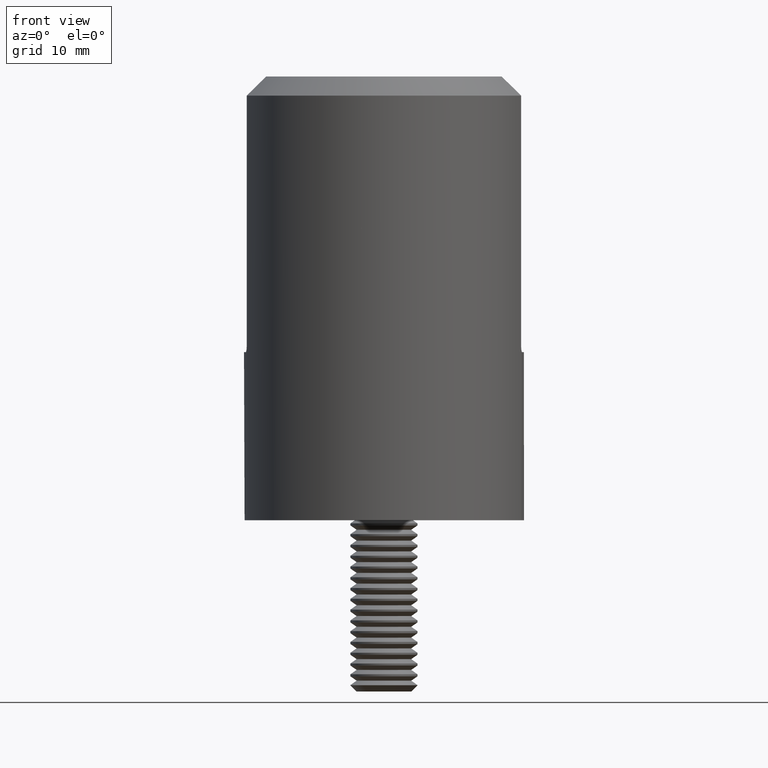
[diagram: clean part render]
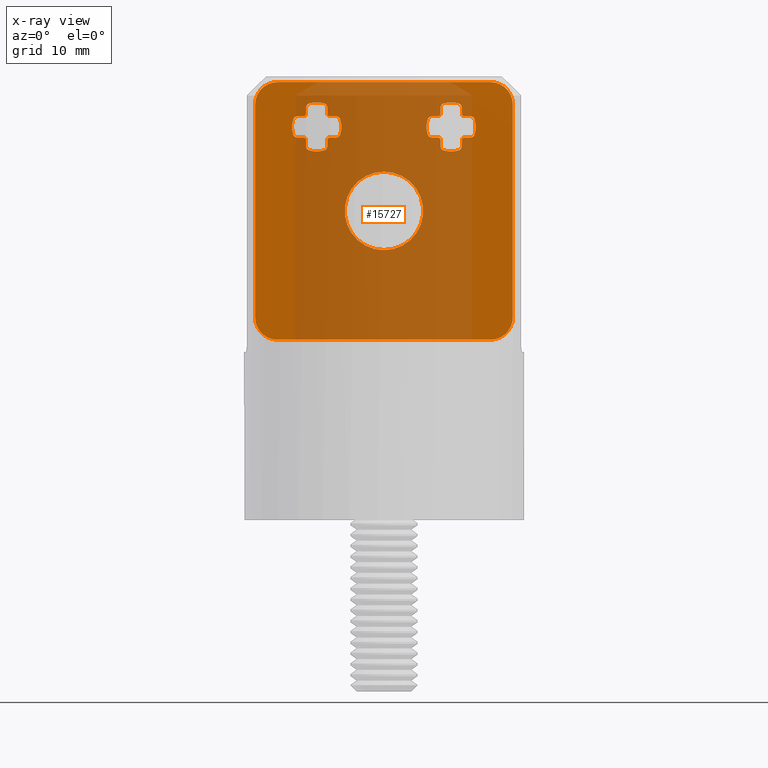
[diagram: x-ray — body ghosted, one internal face saturated and labeled with its STEP entity id]
A machine part, front view, then the same camera in x-ray: the body is ghosted and one INTERNAL B-rep face — a face not visible from any outside direction — is saturated and labeled: STEP entity #15727.
In plain terms, the highlighted planar face has unit normal (0, 1, 0).
Its self-contained STEP definition (entity closure, byte-faithful):
#44 = ORIENTED_EDGE ( 'NONE', *, *, #3584, .T. ) ;
#50 = DIRECTION ( 'NONE',  ( 0.000000000000000000, 0.000000000000000000, -1.000000000000000000 ) ) ;
#71 = CARTESIAN_POINT ( 'NONE',  ( -6.550000000000002487, 1.000000000000000000, 9.213913650100257868 ) ) ;
#146 = EDGE_CURVE ( 'NONE', #19645, #20471, #16641, .T. ) ;
#153 = ORIENTED_EDGE ( 'NONE', *, *, #2492, .T. ) ;
#170 = VERTEX_POINT ( 'NONE', #1592 ) ;
#290 = ORIENTED_EDGE ( 'NONE', *, *, #9149, .F. ) ;
#299 = DIRECTION ( 'NONE',  ( 0.000000000000000000, 0.000000000000000000, -1.000000000000000000 ) ) ;
#421 = ORIENTED_EDGE ( 'NONE', *, *, #8252, .T. ) ;
#505 = ORIENTED_EDGE ( 'NONE', *, *, #21243, .T. ) ;
#563 = CARTESIAN_POINT ( 'NONE',  ( 4.286086349899742132, 1.000000000000000000, 6.549999999999997158 ) ) ;
#592 = CARTESIAN_POINT ( 'NONE',  ( 5.050000000000006928, 1.000000000000000000, 3.162929625227602515E-15 ) ) ;
#634 = ORIENTED_EDGE ( 'NONE', *, *, #14042, .F. ) ;
#670 = CARTESIAN_POINT ( 'NONE',  ( 4.286086349899742132, 1.000000000000000000, 8.449999999999997513 ) ) ;
#910 = EDGE_CURVE ( 'NONE', #9044, #5664, #13900, .T. ) ;
#1152 = VECTOR ( 'NONE', #20059, 1000.000000000000000 ) ;
#1214 = CARTESIAN_POINT ( 'NONE',  ( -6.000000000000002665, 1.000000000000000000, 7.499999999999996447 ) ) ;
#1241 = CARTESIAN_POINT ( 'NONE',  ( 11.50000000000000000, 1.000000000000000000, 11.49999999999999822 ) ) ;
#1272 = DIRECTION ( 'NONE',  ( 0.000000000000000000, -1.000000000000000000, -0.000000000000000000 ) ) ;
#1314 = DIRECTION ( 'NONE',  ( 0.000000000000000000, 0.000000000000000000, -1.000000000000000000 ) ) ;
#1315 = CARTESIAN_POINT ( 'NONE',  ( 5.050000000000002487, 1.000000000000000000, 9.213913650100257868 ) ) ;
#1401 = VERTEX_POINT ( 'NONE', #12452 ) ;
#1406 = AXIS2_PLACEMENT_3D ( 'NONE', #21088, #2342, #12486 ) ;
#1437 = AXIS2_PLACEMENT_3D ( 'NONE', #3101, #4990, #16957 ) ;
#1491 = CARTESIAN_POINT ( 'NONE',  ( -11.50000000000000000, 1.000000000000000000, 9.499999999999996447 ) ) ;
#1555 = CARTESIAN_POINT ( 'NONE',  ( 6.000000000000002665, 1.000000000000000000, 7.499999999999996447 ) ) ;
#1575 = CIRCLE ( 'NONE', #14574, 1.450000000000001732 ) ;
#1592 = CARTESIAN_POINT ( 'NONE',  ( 5.327777777777780166, 1.000000000000000000, 5.405216649877454316 ) ) ;
#1791 = ORIENTED_EDGE ( 'NONE', *, *, #14181, .F. ) ;
#1824 = ORIENTED_EDGE ( 'NONE', *, *, #14923, .F. ) ;
#1828 = EDGE_CURVE ( 'NONE', #12623, #3559, #21762, .T. ) ;
#1979 = EDGE_CURVE ( 'NONE', #7369, #12628, #4358, .T. ) ;
#2043 = DIRECTION ( 'NONE',  ( -1.000000000000000000, -0.000000000000000000, -0.000000000000000000 ) ) ;
#2130 = CARTESIAN_POINT ( 'NONE',  ( -11.50000000000000355, 1.000000000000000000, -9.499999999999987566 ) ) ;
#2137 = EDGE_CURVE ( 'NONE', #20471, #18187, #15336, .T. ) ;
#2238 = ORIENTED_EDGE ( 'NONE', *, *, #5982, .T. ) ;
#2296 = EDGE_CURVE ( 'NONE', #7059, #9124, #19320, .T. ) ;
#2316 = VERTEX_POINT ( 'NONE', #16886 ) ;
#2342 = DIRECTION ( 'NONE',  ( 0.000000000000000000, -1.000000000000000000, -0.000000000000000000 ) ) ;
#2352 = CIRCLE ( 'NONE', #1406, 1.450000000000001732 ) ;
#2356 = DIRECTION ( 'NONE',  ( -0.000000000000000000, 1.000000000000000000, 0.000000000000000000 ) ) ;
#2409 = CARTESIAN_POINT ( 'NONE',  ( 9.499999999999994671, 1.000000000000000000, -11.50000000000000000 ) ) ;
#2444 = DIRECTION ( 'NONE',  ( -1.000000000000000000, 0.000000000000000000, 0.000000000000000000 ) ) ;
#2460 = CIRCLE ( 'NONE', #9320, 2.200000000000000622 ) ;
#2492 = EDGE_CURVE ( 'NONE', #18591, #18471, #4594, .T. ) ;
#2519 = DIRECTION ( 'NONE',  ( 0.000000000000000000, -1.000000000000000000, -0.000000000000000000 ) ) ;
#2574 = DIRECTION ( 'NONE',  ( -0.000000000000000000, 1.000000000000000000, 0.000000000000000000 ) ) ;
#2578 = ORIENTED_EDGE ( 'NONE', *, *, #13150, .F. ) ;
#2656 = VECTOR ( 'NONE', #3672, 1000.000000000000000 ) ;
#2678 = EDGE_CURVE ( 'NONE', #13022, #21273, #5667, .T. ) ;
#2696 = CARTESIAN_POINT ( 'NONE',  ( -5.050000000000002487, 1.000000000000000000, 0.000000000000000000 ) ) ;
#2719 = CARTESIAN_POINT ( 'NONE',  ( -4.286086349899737691, 1.000000000000000000, 6.549999999999997158 ) ) ;
#2736 = LINE ( 'NONE', #11744, #5438 ) ;
#2758 = VERTEX_POINT ( 'NONE', #6447 ) ;
#2798 = AXIS2_PLACEMENT_3D ( 'NONE', #5819, #19737, #7444 ) ;
#2811 = CIRCLE ( 'NONE', #2950, 0.4000000000000001887 ) ;
#2828 = DIRECTION ( 'NONE',  ( -0.000000000000000000, 1.000000000000000000, 0.000000000000000000 ) ) ;
#2860 = DIRECTION ( 'NONE',  ( -1.000000000000000000, -0.000000000000000000, -0.000000000000000000 ) ) ;
#2889 = AXIS2_PLACEMENT_3D ( 'NONE', #11003, #19688, #11217 ) ;
#2906 = CARTESIAN_POINT ( 'NONE',  ( -5.450000000000001954, 1.000000000000000000, 9.213913650100261421 ) ) ;
#2911 = EDGE_CURVE ( 'NONE', #10373, #20792, #11012, .T. ) ;
#2935 = CARTESIAN_POINT ( 'NONE',  ( 8.094783350122543908, 1.000000000000000000, 6.827777777777773061 ) ) ;
#2950 = AXIS2_PLACEMENT_3D ( 'NONE', #20547, #6982, #5140 ) ;
#3060 = AXIS2_PLACEMENT_3D ( 'NONE', #21128, #11011, #17597 ) ;
#3101 = CARTESIAN_POINT ( 'NONE',  ( 6.000000000000002665, 1.000000000000000000, 7.499999999999996447 ) ) ;
#3114 = VECTOR ( 'NONE', #11691, 1000.000000000000000 ) ;
#3177 = ORIENTED_EDGE ( 'NONE', *, *, #9538, .T. ) ;
#3199 = ORIENTED_EDGE ( 'NONE', *, *, #9193, .T. ) ;
#3231 = AXIS2_PLACEMENT_3D ( 'NONE', #9129, #4010, #21244 ) ;
#3342 = DIRECTION ( 'NONE',  ( 6.263226980648709475E-16, -0.000000000000000000, -1.000000000000000000 ) ) ;
#3402 = ORIENTED_EDGE ( 'NONE', *, *, #22007, .T. ) ;
#3454 = VECTOR ( 'NONE', #3342, 1000.000000000000000 ) ;
#3471 = DIRECTION ( 'NONE',  ( -0.000000000000000000, 1.000000000000000000, 0.000000000000000000 ) ) ;
#3515 = VECTOR ( 'NONE', #8057, 1000.000000000000000 ) ;
#3559 = VERTEX_POINT ( 'NONE', #18555 ) ;
#3572 = CARTESIAN_POINT ( 'NONE',  ( -6.950000000000002842, 1.000000000000000000, 8.499999999999994671 ) ) ;
#3584 = EDGE_CURVE ( 'NONE', #19025, #7617, #13683, .T. ) ;
#3601 = ORIENTED_EDGE ( 'NONE', *, *, #10286, .T. ) ;
#3672 = DIRECTION ( 'NONE',  ( 1.000000000000000000, -0.000000000000000000, -0.000000000000000000 ) ) ;
#3732 = AXIS2_PLACEMENT_3D ( 'NONE', #6668, #20241, #8411 ) ;
#3767 = AXIS2_PLACEMENT_3D ( 'NONE', #11432, #9652, #1314 ) ;
#3885 = ORIENTED_EDGE ( 'NONE', *, *, #13881, .F. ) ;
#3902 = ORIENTED_EDGE ( 'NONE', *, *, #2296, .F. ) ;
#3913 = FACE_OUTER_BOUND ( 'NONE', #21802, .T. ) ;
#3956 = AXIS2_PLACEMENT_3D ( 'NONE', #15456, #8723, #50 ) ;
#3972 = DIRECTION ( 'NONE',  ( -0.000000000000000000, 1.000000000000000000, 0.000000000000000000 ) ) ;
#4010 = DIRECTION ( 'NONE',  ( -0.000000000000000000, 1.000000000000000000, 0.000000000000000000 ) ) ;
#4082 = EDGE_CURVE ( 'NONE', #7369, #5664, #15042, .T. ) ;
#4100 = DIRECTION ( 'NONE',  ( 2.168404344971007685E-15, 0.000000000000000000, -1.000000000000000000 ) ) ;
#4124 = VERTEX_POINT ( 'NONE', #20135 ) ;
#4150 = EDGE_CURVE ( 'NONE', #9044, #7908, #9419, .T. ) ;
#4200 = CARTESIAN_POINT ( 'NONE',  ( 5.050000000000002487, 1.000000000000000000, 8.499999999999994671 ) ) ;
#4340 = CARTESIAN_POINT ( 'NONE',  ( -5.000000000000003553, 1.000000000000000000, 8.449999999999997513 ) ) ;
#4358 = LINE ( 'NONE', #7016, #21225 ) ;
#4405 = CARTESIAN_POINT ( 'NONE',  ( 9.499999999999996447, 1.000000000000000000, -9.500000000000000000 ) ) ;
#4428 = ORIENTED_EDGE ( 'NONE', *, *, #5913, .T. ) ;
#4462 = AXIS2_PLACEMENT_3D ( 'NONE', #18307, #4685, #6182 ) ;
#4482 = DIRECTION ( 'NONE',  ( 1.000000000000000000, 0.000000000000000000, 7.542275982507857147E-17 ) ) ;
#4507 = CARTESIAN_POINT ( 'NONE',  ( 7.713913650100264086, 1.000000000000000000, 8.049999999999997158 ) ) ;
#4526 = DIRECTION ( 'NONE',  ( 0.000000000000000000, 0.000000000000000000, -1.000000000000000000 ) ) ;
#4555 = ORIENTED_EDGE ( 'NONE', *, *, #15087, .T. ) ;
#4559 = VERTEX_POINT ( 'NONE', #17942 ) ;
#4594 = LINE ( 'NONE', #20791, #12385 ) ;
#4635 = VERTEX_POINT ( 'NONE', #9788 ) ;
#4679 = AXIS2_PLACEMENT_3D ( 'NONE', #15996, #14358, #12713 ) ;
#4685 = DIRECTION ( 'NONE',  ( -0.000000000000000000, 1.000000000000000000, 0.000000000000000000 ) ) ;
#4773 = CIRCLE ( 'NONE', #8316, 0.4000000000000001887 ) ;
#4869 = ORIENTED_EDGE ( 'NONE', *, *, #2137, .T. ) ;
#4948 = AXIS2_PLACEMENT_3D ( 'NONE', #6448, #19627, #9537 ) ;
#4990 = DIRECTION ( 'NONE',  ( 0.000000000000000000, -1.000000000000000000, -0.000000000000000000 ) ) ;
#5095 = DIRECTION ( 'NONE',  ( -6.263226980648714405E-16, 0.000000000000000000, -1.000000000000000000 ) ) ;
#5100 = LINE ( 'NONE', #21645, #13663 ) ;
#5140 = DIRECTION ( 'NONE',  ( -2.168404344971007685E-15, 0.000000000000000000, -1.000000000000000000 ) ) ;
#5145 = CARTESIAN_POINT ( 'NONE',  ( -5.450000000000002842, 1.000000000000000000, 5.786086349899735026 ) ) ;
#5182 = ORIENTED_EDGE ( 'NONE', *, *, #11761, .T. ) ;
#5191 = DIRECTION ( 'NONE',  ( 0.000000000000000000, -1.000000000000000000, -0.000000000000000000 ) ) ;
#5208 = VERTEX_POINT ( 'NONE', #11467 ) ;
#5282 = EDGE_CURVE ( 'NONE', #4124, #6681, #1575, .T. ) ;
#5299 = VERTEX_POINT ( 'NONE', #1491 ) ;
#5321 = ORIENTED_EDGE ( 'NONE', *, *, #15883, .T. ) ;
#5359 = DIRECTION ( 'NONE',  ( 0.000000000000000000, -1.000000000000000000, -0.000000000000000000 ) ) ;
#5389 = EDGE_CURVE ( 'NONE', #6681, #8841, #20068, .T. ) ;
#5438 = VECTOR ( 'NONE', #6733, 1000.000000000000000 ) ;
#5448 = EDGE_CURVE ( 'NONE', #7103, #9124, #15003, .T. ) ;
#5511 = ORIENTED_EDGE ( 'NONE', *, *, #1828, .T. ) ;
#5535 = ORIENTED_EDGE ( 'NONE', *, *, #5389, .T. ) ;
#5565 = CARTESIAN_POINT ( 'NONE',  ( 7.095445115011708381, 1.000000000000000000, 6.550000000001578115 ) ) ;
#5568 = CARTESIAN_POINT ( 'NONE',  ( 7.095445115013530923, 1.000000000000000000, 8.449999999999997513 ) ) ;
#5621 = EDGE_CURVE ( 'NONE', #12444, #5208, #5100, .T. ) ;
#5664 = VERTEX_POINT ( 'NONE', #7012 ) ;
#5667 = CIRCLE ( 'NONE', #20852, 0.3999999999999993006 ) ;
#5711 = LINE ( 'NONE', #8305, #1152 ) ;
#5753 = DIRECTION ( 'NONE',  ( 0.000000000000000000, 0.000000000000000000, -1.000000000000000000 ) ) ;
#5762 = VERTEX_POINT ( 'NONE', #15673 ) ;
#5789 = FACE_BOUND ( 'NONE', #18725, .T. ) ;
#5805 = CARTESIAN_POINT ( 'NONE',  ( 4.286086349899742132, 1.000000000000000000, 8.049999999999997158 ) ) ;
#5819 = CARTESIAN_POINT ( 'NONE',  ( -6.000000000000002665, 1.000000000000000000, 7.499999999999996447 ) ) ;
#5913 = EDGE_CURVE ( 'NONE', #9985, #2758, #8283, .T. ) ;
#5982 = EDGE_CURVE ( 'NONE', #19399, #16402, #14193, .T. ) ;
#6010 = ORIENTED_EDGE ( 'NONE', *, *, #4082, .F. ) ;
#6035 = ORIENTED_EDGE ( 'NONE', *, *, #146, .T. ) ;
#6087 = DIRECTION ( 'NONE',  ( 0.000000000000000000, 0.000000000000000000, -1.000000000000000000 ) ) ;
#6095 = CARTESIAN_POINT ( 'NONE',  ( 6.672222222222226939, 1.000000000000000000, 5.405216649877455204 ) ) ;
#6182 = DIRECTION ( 'NONE',  ( 0.000000000000000000, 0.000000000000000000, -1.000000000000000000 ) ) ;
#6193 = AXIS2_PLACEMENT_3D ( 'NONE', #21175, #7313, #5753 ) ;
#6196 = VERTEX_POINT ( 'NONE', #12297 ) ;
#6242 = ORIENTED_EDGE ( 'NONE', *, *, #21346, .T. ) ;
#6304 = CARTESIAN_POINT ( 'NONE',  ( -5.050000000000002487, 1.000000000000000000, 9.213913650100261421 ) ) ;
#6336 = LINE ( 'NONE', #16651, #22188 ) ;
#6357 = CARTESIAN_POINT ( 'NONE',  ( 7.713913650100264086, 1.000000000000000000, 6.949999999999995737 ) ) ;
#6447 = CARTESIAN_POINT ( 'NONE',  ( 5.050000000001583444, 1.000000000000000000, 8.595445115011701276 ) ) ;
#6448 = CARTESIAN_POINT ( 'NONE',  ( 6.000000000000002665, 1.000000000000000000, 7.499999999999996447 ) ) ;
#6501 = VERTEX_POINT ( 'NONE', #15486 ) ;
#6629 = CARTESIAN_POINT ( 'NONE',  ( 11.50000000000000000, 1.000000000000000000, 9.499999999999998224 ) ) ;
#6668 = CARTESIAN_POINT ( 'NONE',  ( 0.000000000000000000, 1.000000000000000000, 0.000000000000000000 ) ) ;
#6669 = AXIS2_PLACEMENT_3D ( 'NONE', #17753, #9245, #9096 ) ;
#6681 = VERTEX_POINT ( 'NONE', #21382 ) ;
#6733 = DIRECTION ( 'NONE',  ( 1.000000000000000000, -0.000000000000000000, 6.263226980648714405E-16 ) ) ;
#6761 = LINE ( 'NONE', #19544, #21245 ) ;
#6799 = EDGE_CURVE ( 'NONE', #20240, #20792, #16552, .T. ) ;
#6843 = DIRECTION ( 'NONE',  ( 0.000000000000000000, 0.000000000000000000, -1.000000000000000000 ) ) ;
#6937 = AXIS2_PLACEMENT_3D ( 'NONE', #12375, #17447, #7468 ) ;
#6966 = CARTESIAN_POINT ( 'NONE',  ( -9.500000000000000000, 1.000000000000000000, 11.49999999999999645 ) ) ;
#6982 = DIRECTION ( 'NONE',  ( -0.000000000000000000, 1.000000000000000000, 0.000000000000000000 ) ) ;
#6992 = DIRECTION ( 'NONE',  ( 0.000000000000000000, 0.000000000000000000, -1.000000000000000000 ) ) ;
#7012 = CARTESIAN_POINT ( 'NONE',  ( 8.094783350122545684, 1.000000000000000000, 8.172222222222217169 ) ) ;
#7016 = CARTESIAN_POINT ( 'NONE',  ( 7.000000000000002665, 1.000000000000000000, 8.449999999999997513 ) ) ;
#7059 = VERTEX_POINT ( 'NONE', #19630 ) ;
#7103 = VERTEX_POINT ( 'NONE', #16120 ) ;
#7128 = CIRCLE ( 'NONE', #16814, 2.200000000000000622 ) ;
#7169 = DIRECTION ( 'NONE',  ( -1.000000000000000000, 0.000000000000000000, 0.000000000000000000 ) ) ;
#7313 = DIRECTION ( 'NONE',  ( -0.000000000000000000, 1.000000000000000000, 0.000000000000000000 ) ) ;
#7369 = VERTEX_POINT ( 'NONE', #8829 ) ;
#7386 = FACE_BOUND ( 'NONE', #16112, .T. ) ;
#7399 = CARTESIAN_POINT ( 'NONE',  ( -8.094783350122538579, 1.000000000000000000, 6.827777777777773061 ) ) ;
#7444 = DIRECTION ( 'NONE',  ( 0.000000000000000000, 0.000000000000000000, -1.000000000000000000 ) ) ;
#7468 = DIRECTION ( 'NONE',  ( 0.000000000000000000, 0.000000000000000000, -1.000000000000000000 ) ) ;
#7485 = ORIENTED_EDGE ( 'NONE', *, *, #12264, .F. ) ;
#7512 = DIRECTION ( 'NONE',  ( 0.000000000000000000, 0.000000000000000000, -1.000000000000000000 ) ) ;
#7614 = LINE ( 'NONE', #20331, #16450 ) ;
#7617 = VERTEX_POINT ( 'NONE', #12711 ) ;
#7649 = CARTESIAN_POINT ( 'NONE',  ( -9.500000000000005329, 1.000000000000000000, -11.49999999999999112 ) ) ;
#7664 = DIRECTION ( 'NONE',  ( 0.000000000000000000, -1.000000000000000000, -0.000000000000000000 ) ) ;
#7666 = LINE ( 'NONE', #18763, #10358 ) ;
#7780 = CARTESIAN_POINT ( 'NONE',  ( 6.000000000000002665, 1.000000000000000000, 7.499999999999996447 ) ) ;
#7819 = ORIENTED_EDGE ( 'NONE', *, *, #22178, .F. ) ;
#7824 = VERTEX_POINT ( 'NONE', #15389 ) ;
#7873 = ORIENTED_EDGE ( 'NONE', *, *, #20155, .T. ) ;
#7908 = VERTEX_POINT ( 'NONE', #16947 ) ;
#8016 = ORIENTED_EDGE ( 'NONE', *, *, #8042, .T. ) ;
#8042 = EDGE_CURVE ( 'NONE', #4635, #10252, #20535, .T. ) ;
#8057 = DIRECTION ( 'NONE',  ( -1.508455196501571429E-16, 0.000000000000000000, -1.000000000000000000 ) ) ;
#8100 = DIRECTION ( 'NONE',  ( -0.000000000000000000, 1.000000000000000000, 0.000000000000000000 ) ) ;
#8243 = CARTESIAN_POINT ( 'NONE',  ( -5.999999999999997335, 1.000000000000000000, 7.499999999999998224 ) ) ;
#8252 = EDGE_CURVE ( 'NONE', #13509, #16951, #8484, .T. ) ;
#8283 = LINE ( 'NONE', #4200, #8541 ) ;
#8305 = CARTESIAN_POINT ( 'NONE',  ( 5.000000000000003553, 1.000000000000000000, 6.549999999999997158 ) ) ;
#8316 = AXIS2_PLACEMENT_3D ( 'NONE', #10381, #17260, #6992 ) ;
#8386 = EDGE_CURVE ( 'NONE', #10373, #11030, #14381, .T. ) ;
#8387 = ORIENTED_EDGE ( 'NONE', *, *, #12014, .T. ) ;
#8388 = ORIENTED_EDGE ( 'NONE', *, *, #14104, .F. ) ;
#8411 = DIRECTION ( 'NONE',  ( 0.000000000000000000, 0.000000000000000000, 1.000000000000000000 ) ) ;
#8466 = DIRECTION ( 'NONE',  ( 0.000000000000000000, 0.000000000000000000, 1.000000000000000000 ) ) ;
#8484 = LINE ( 'NONE', #16796, #3114 ) ;
#8511 = CIRCLE ( 'NONE', #14249, 0.4000000000000001887 ) ;
#8521 = VECTOR ( 'NONE', #2860, 1000.000000000000000 ) ;
#8534 = VERTEX_POINT ( 'NONE', #9624 ) ;
#8541 = VECTOR ( 'NONE', #15078, 1000.000000000000000 ) ;
#8608 = EDGE_CURVE ( 'NONE', #7059, #4124, #7666, .T. ) ;
#8723 = DIRECTION ( 'NONE',  ( 0.000000000000000000, -1.000000000000000000, -0.000000000000000000 ) ) ;
#8802 = ORIENTED_EDGE ( 'NONE', *, *, #13662, .F. ) ;
#8829 = CARTESIAN_POINT ( 'NONE',  ( 7.713913650100264086, 1.000000000000000000, 8.449999999999997513 ) ) ;
#8841 = VERTEX_POINT ( 'NONE', #2719 ) ;
#8953 = CARTESIAN_POINT ( 'NONE',  ( -6.000000000000002665, 1.000000000000000000, 7.499999999999996447 ) ) ;
#9044 = VERTEX_POINT ( 'NONE', #2935 ) ;
#9072 = AXIS2_PLACEMENT_3D ( 'NONE', #12675, #3972, #19470 ) ;
#9096 = DIRECTION ( 'NONE',  ( 0.000000000000000000, 0.000000000000000000, -1.000000000000000000 ) ) ;
#9124 = VERTEX_POINT ( 'NONE', #13828 ) ;
#9129 = CARTESIAN_POINT ( 'NONE',  ( 5.450000000000001954, 1.000000000000000000, 9.213913650100257868 ) ) ;
#9149 = EDGE_CURVE ( 'NONE', #2316, #7824, #2811, .T. ) ;
#9193 = EDGE_CURVE ( 'NONE', #18187, #14406, #15433, .T. ) ;
#9245 = DIRECTION ( 'NONE',  ( 0.000000000000000000, -1.000000000000000000, -0.000000000000000000 ) ) ;
#9297 = AXIS2_PLACEMENT_3D ( 'NONE', #8953, #5359, #12086 ) ;
#9320 = AXIS2_PLACEMENT_3D ( 'NONE', #1555, #5191, #10044 ) ;
#9343 = CARTESIAN_POINT ( 'NONE',  ( -7.713913650100259645, 1.000000000000000000, 8.449999999999997513 ) ) ;
#9403 = CARTESIAN_POINT ( 'NONE',  ( 6.000000000000002665, 1.000000000000000000, 7.499999999999996447 ) ) ;
#9419 = CIRCLE ( 'NONE', #13055, 0.4000000000000001887 ) ;
#9420 = CARTESIAN_POINT ( 'NONE',  ( -3.905216649877456536, 1.000000000000000000, 6.827777777777773061 ) ) ;
#9478 = CARTESIAN_POINT ( 'NONE',  ( -7.713913650100257868, 1.000000000000000000, 6.949999999999995737 ) ) ;
#9479 = EDGE_CURVE ( 'NONE', #19890, #7824, #19957, .T. ) ;
#9537 = DIRECTION ( 'NONE',  ( 0.000000000000000000, 0.000000000000000000, -1.000000000000000000 ) ) ;
#9538 = EDGE_CURVE ( 'NONE', #1401, #19399, #10605, .T. ) ;
#9583 = ORIENTED_EDGE ( 'NONE', *, *, #5448, .T. ) ;
#9585 = CARTESIAN_POINT ( 'NONE',  ( 6.000000000000002665, 1.000000000000000000, 7.499999999999996447 ) ) ;
#9602 = VERTEX_POINT ( 'NONE', #15585 ) ;
#9624 = CARTESIAN_POINT ( 'NONE',  ( 0.000000000000000000, 1.000000000000000000, 3.499999999999999556 ) ) ;
#9641 = CARTESIAN_POINT ( 'NONE',  ( 5.327777777777778390, 1.000000000000000000, 9.594783350122536802 ) ) ;
#9652 = DIRECTION ( 'NONE',  ( -0.000000000000000000, 1.000000000000000000, 0.000000000000000000 ) ) ;
#9788 = CARTESIAN_POINT ( 'NONE',  ( 6.672222222222225163, 1.000000000000000000, 9.594783350122536802 ) ) ;
#9885 = CIRCLE ( 'NONE', #9889, 2.000000000000000000 ) ;
#9889 = AXIS2_PLACEMENT_3D ( 'NONE', #11134, #2356, #14596 ) ;
#9900 = DIRECTION ( 'NONE',  ( 0.000000000000000000, 0.000000000000000000, -1.000000000000000000 ) ) ;
#9928 = DIRECTION ( 'NONE',  ( 1.508455196501572415E-16, -0.000000000000000000, 1.000000000000000000 ) ) ;
#9971 = DIRECTION ( 'NONE',  ( 0.000000000000000000, -1.000000000000000000, -0.000000000000000000 ) ) ;
#9985 = VERTEX_POINT ( 'NONE', #1315 ) ;
#10044 = DIRECTION ( 'NONE',  ( 0.000000000000000000, 0.000000000000000000, -1.000000000000000000 ) ) ;
#10115 = DIRECTION ( 'NONE',  ( 0.000000000000000000, 0.000000000000000000, -1.000000000000000000 ) ) ;
#10140 = DIRECTION ( 'NONE',  ( 1.000000000000000000, 0.000000000000000000, -6.263226980648714405E-16 ) ) ;
#10252 = VERTEX_POINT ( 'NONE', #9641 ) ;
#10286 = EDGE_CURVE ( 'NONE', #20665, #5299, #7614, .T. ) ;
#10348 = LINE ( 'NONE', #4340, #19993 ) ;
#10358 = VECTOR ( 'NONE', #10387, 1000.000000000000000 ) ;
#10366 = AXIS2_PLACEMENT_3D ( 'NONE', #9478, #19873, #6087 ) ;
#10373 = VERTEX_POINT ( 'NONE', #17255 ) ;
#10381 = CARTESIAN_POINT ( 'NONE',  ( 4.286086349899742132, 1.000000000000000000, 6.949999999999995737 ) ) ;
#10387 = DIRECTION ( 'NONE',  ( 6.263226980648709475E-16, 0.000000000000000000, 1.000000000000000000 ) ) ;
#10467 = DIRECTION ( 'NONE',  ( -0.000000000000000000, 1.000000000000000000, 0.000000000000000000 ) ) ;
#10523 = AXIS2_PLACEMENT_3D ( 'NONE', #7780, #19834, #17806 ) ;
#10528 = CIRCLE ( 'NONE', #21517, 0.4000000000000001887 ) ;
#10581 = CARTESIAN_POINT ( 'NONE',  ( -7.713913650100259645, 1.000000000000000000, 8.049999999999997158 ) ) ;
#10605 = LINE ( 'NONE', #18716, #14624 ) ;
#10646 = PLANE ( 'NONE',  #2889 ) ;
#10655 = CARTESIAN_POINT ( 'NONE',  ( 0.000000000000000000, 1.000000000000000000, 6.549999999999997158 ) ) ;
#10789 = DIRECTION ( 'NONE',  ( 0.000000000000000000, 0.000000000000000000, -1.000000000000000000 ) ) ;
#11003 = CARTESIAN_POINT ( 'NONE',  ( 0.000000000000000000, 1.000000000000000000, 0.000000000000000000 ) ) ;
#11011 = DIRECTION ( 'NONE',  ( 0.000000000000000000, -1.000000000000000000, -0.000000000000000000 ) ) ;
#11012 = CIRCLE ( 'NONE', #15702, 0.4000000000000001887 ) ;
#11030 = VERTEX_POINT ( 'NONE', #7399 ) ;
#11134 = CARTESIAN_POINT ( 'NONE',  ( -9.500000000000000000, 1.000000000000000000, 9.499999999999996447 ) ) ;
#11217 = DIRECTION ( 'NONE',  ( 0.000000000000000000, 0.000000000000000000, -1.000000000000000000 ) ) ;
#11391 = CARTESIAN_POINT ( 'NONE',  ( -6.950000000000001954, 1.000000000000000000, 9.213913650100257868 ) ) ;
#11409 = CARTESIAN_POINT ( 'NONE',  ( 0.000000000000000000, 1.000000000000000000, 8.449999999999997513 ) ) ;
#11432 = CARTESIAN_POINT ( 'NONE',  ( 9.500000000000000000, 1.000000000000000000, 9.499999999999998224 ) ) ;
#11467 = CARTESIAN_POINT ( 'NONE',  ( 9.499999999999998224, 1.000000000000000000, 11.49999999999999822 ) ) ;
#11641 = AXIS2_PLACEMENT_3D ( 'NONE', #5145, #3471, #6843 ) ;
#11679 = EDGE_CURVE ( 'NONE', #16402, #7908, #2736, .T. ) ;
#11691 = DIRECTION ( 'NONE',  ( -6.263226980648714405E-16, -0.000000000000000000, 1.000000000000000000 ) ) ;
#11708 = EDGE_CURVE ( 'NONE', #170, #20770, #2460, .T. ) ;
#11744 = CARTESIAN_POINT ( 'NONE',  ( -4.102413672324902132E-15, 1.000000000000000000, 6.549999999999991829 ) ) ;
#11756 = CARTESIAN_POINT ( 'NONE',  ( -6.000000000000002665, 1.000000000000000000, 7.499999999999996447 ) ) ;
#11761 = EDGE_CURVE ( 'NONE', #9602, #14788, #6761, .T. ) ;
#11843 = ORIENTED_EDGE ( 'NONE', *, *, #11708, .T. ) ;
#11860 = DIRECTION ( 'NONE',  ( -1.000000000000000000, -0.000000000000000000, 5.279593187755499510E-16 ) ) ;
#11898 = VERTEX_POINT ( 'NONE', #19772 ) ;
#12014 = EDGE_CURVE ( 'NONE', #15285, #12623, #5711, .T. ) ;
#12066 = ORIENTED_EDGE ( 'NONE', *, *, #13311, .T. ) ;
#12086 = DIRECTION ( 'NONE',  ( 0.000000000000000000, 0.000000000000000000, -1.000000000000000000 ) ) ;
#12217 = VECTOR ( 'NONE', #11860, 1000.000000000000000 ) ;
#12264 = EDGE_CURVE ( 'NONE', #1401, #20770, #10528, .T. ) ;
#12288 = CIRCLE ( 'NONE', #9072, 0.4000000000000001887 ) ;
#12297 = CARTESIAN_POINT ( 'NONE',  ( -4.904554884988297836, 1.000000000000000000, 8.449999999998414779 ) ) ;
#12363 = ORIENTED_EDGE ( 'NONE', *, *, #21176, .T. ) ;
#12375 = CARTESIAN_POINT ( 'NONE',  ( 5.450000000000002842, 1.000000000000000000, 5.786086349899735026 ) ) ;
#12385 = VECTOR ( 'NONE', #2043, 1000.000000000000000 ) ;
#12438 = ORIENTED_EDGE ( 'NONE', *, *, #14797, .T. ) ;
#12444 = VERTEX_POINT ( 'NONE', #6966 ) ;
#12452 = CARTESIAN_POINT ( 'NONE',  ( 6.950000000000002842, 1.000000000000000000, 5.786086349899735026 ) ) ;
#12486 = DIRECTION ( 'NONE',  ( 0.000000000000000000, 0.000000000000000000, -1.000000000000000000 ) ) ;
#12584 = CIRCLE ( 'NONE', #9297, 1.450000000000001732 ) ;
#12586 = LINE ( 'NONE', #592, #3454 ) ;
#12623 = VERTEX_POINT ( 'NONE', #20913 ) ;
#12628 = VERTEX_POINT ( 'NONE', #5568 ) ;
#12675 = CARTESIAN_POINT ( 'NONE',  ( -4.286086349899737691, 1.000000000000000000, 6.949999999999995737 ) ) ;
#12711 = CARTESIAN_POINT ( 'NONE',  ( -6.949999999998421885, 1.000000000000000000, 8.595445115011701276 ) ) ;
#12713 = DIRECTION ( 'NONE',  ( 0.000000000000000000, 0.000000000000000000, -1.000000000000000000 ) ) ;
#12798 = DIRECTION ( 'NONE',  ( -0.000000000000000000, 1.000000000000000000, 0.000000000000000000 ) ) ;
#12876 = CARTESIAN_POINT ( 'NONE',  ( 6.550000000000003375, 1.000000000000000000, 5.786086349899735026 ) ) ;
#13022 = VERTEX_POINT ( 'NONE', #19229 ) ;
#13055 = AXIS2_PLACEMENT_3D ( 'NONE', #6357, #16837, #18338 ) ;
#13084 = EDGE_CURVE ( 'NONE', #5299, #12444, #9885, .T. ) ;
#13150 = EDGE_CURVE ( 'NONE', #7103, #14788, #17382, .T. ) ;
#13311 = EDGE_CURVE ( 'NONE', #12628, #13509, #2352, .T. ) ;
#13335 = CIRCLE ( 'NONE', #15934, 2.000000000000000000 ) ;
#13464 = ORIENTED_EDGE ( 'NONE', *, *, #19801, .F. ) ;
#13509 = VERTEX_POINT ( 'NONE', #15012 ) ;
#13530 = AXIS2_PLACEMENT_3D ( 'NONE', #4405, #12798, #16233 ) ;
#13531 = EDGE_LOOP ( 'NONE', ( #8802 ) ) ;
#13627 = CIRCLE ( 'NONE', #2798, 1.450000000000001732 ) ;
#13662 = EDGE_CURVE ( 'NONE', #8534, #8534, #20330, .T. ) ;
#13663 = VECTOR ( 'NONE', #4482, 1000.000000000000000 ) ;
#13683 = LINE ( 'NONE', #3572, #17140 ) ;
#13770 = AXIS2_PLACEMENT_3D ( 'NONE', #4507, #2828, #20061 ) ;
#13815 = ORIENTED_EDGE ( 'NONE', *, *, #5621, .T. ) ;
#13828 = CARTESIAN_POINT ( 'NONE',  ( -5.327777777777781054, 1.000000000000000000, 5.405216649877454316 ) ) ;
#13881 = EDGE_CURVE ( 'NONE', #19890, #8841, #12288, .T. ) ;
#13900 = CIRCLE ( 'NONE', #1437, 2.200000000000000622 ) ;
#14004 = ORIENTED_EDGE ( 'NONE', *, *, #15800, .T. ) ;
#14042 = EDGE_CURVE ( 'NONE', #15285, #6501, #4773, .T. ) ;
#14104 = EDGE_CURVE ( 'NONE', #17659, #18471, #8511, .T. ) ;
#14108 = DIRECTION ( 'NONE',  ( -0.000000000000000000, 1.000000000000000000, 0.000000000000000000 ) ) ;
#14181 = EDGE_CURVE ( 'NONE', #20149, #11030, #21931, .T. ) ;
#14193 = CIRCLE ( 'NONE', #4948, 1.450000000000001732 ) ;
#14210 = DIRECTION ( 'NONE',  ( -0.000000000000000000, 1.000000000000000000, 0.000000000000000000 ) ) ;
#14249 = AXIS2_PLACEMENT_3D ( 'NONE', #5805, #14210, #7512 ) ;
#14290 = ORIENTED_EDGE ( 'NONE', *, *, #8386, .T. ) ;
#14348 = ORIENTED_EDGE ( 'NONE', *, *, #1979, .T. ) ;
#14358 = DIRECTION ( 'NONE',  ( 0.000000000000000000, -1.000000000000000000, -0.000000000000000000 ) ) ;
#14381 = CIRCLE ( 'NONE', #3956, 2.200000000000000622 ) ;
#14406 = VERTEX_POINT ( 'NONE', #7649 ) ;
#14454 = CARTESIAN_POINT ( 'NONE',  ( 6.949999999998421885, 1.000000000000000000, 6.404554884988290731 ) ) ;
#14469 = DIRECTION ( 'NONE',  ( -0.000000000000000000, -0.000000000000000000, -1.000000000000000000 ) ) ;
#14574 = AXIS2_PLACEMENT_3D ( 'NONE', #11756, #17008, #18889 ) ;
#14596 = DIRECTION ( 'NONE',  ( 0.000000000000000000, 0.000000000000000000, -1.000000000000000000 ) ) ;
#14624 = VECTOR ( 'NONE', #8466, 1000.000000000000000 ) ;
#14705 = ORIENTED_EDGE ( 'NONE', *, *, #5282, .T. ) ;
#14725 = ORIENTED_EDGE ( 'NONE', *, *, #910, .T. ) ;
#14756 = CIRCLE ( 'NONE', #3231, 0.3999999999999993006 ) ;
#14777 = ORIENTED_EDGE ( 'NONE', *, *, #19304, .F. ) ;
#14788 = VERTEX_POINT ( 'NONE', #15489 ) ;
#14797 = EDGE_CURVE ( 'NONE', #14406, #20665, #13335, .T. ) ;
#14923 = EDGE_CURVE ( 'NONE', #4635, #16951, #16275, .T. ) ;
#15003 = CIRCLE ( 'NONE', #3060, 2.200000000000000622 ) ;
#15012 = CARTESIAN_POINT ( 'NONE',  ( 6.949999999998421885, 1.000000000000000000, 8.595445115011701276 ) ) ;
#15042 = CIRCLE ( 'NONE', #13770, 0.4000000000000001887 ) ;
#15049 = ORIENTED_EDGE ( 'NONE', *, *, #2678, .F. ) ;
#15053 = CARTESIAN_POINT ( 'NONE',  ( -5.050000000000002487, 1.000000000000000000, 8.595445115013525594 ) ) ;
#15078 = DIRECTION ( 'NONE',  ( -0.000000000000000000, 0.000000000000000000, -1.000000000000000000 ) ) ;
#15087 = EDGE_CURVE ( 'NONE', #20149, #11898, #6336, .T. ) ;
#15173 = CARTESIAN_POINT ( 'NONE',  ( 4.904554884986475294, 1.000000000000000000, 8.449999999999997513 ) ) ;
#15285 = VERTEX_POINT ( 'NONE', #563 ) ;
#15336 = CIRCLE ( 'NONE', #13530, 2.000000000000000000 ) ;
#15349 = DIRECTION ( 'NONE',  ( -0.000000000000000000, 1.000000000000000000, 0.000000000000000000 ) ) ;
#15389 = CARTESIAN_POINT ( 'NONE',  ( -3.905216649877455204, 1.000000000000000000, 8.172222222222217169 ) ) ;
#15422 = DIRECTION ( 'NONE',  ( -8.673617379884035472E-16, 0.000000000000000000, -1.000000000000000000 ) ) ;
#15433 = LINE ( 'NONE', #18908, #12217 ) ;
#15456 = CARTESIAN_POINT ( 'NONE',  ( -5.999999999999997335, 1.000000000000000000, 7.499999999999998224 ) ) ;
#15486 = CARTESIAN_POINT ( 'NONE',  ( 3.905216649877461421, 1.000000000000000000, 6.827777777777773061 ) ) ;
#15489 = CARTESIAN_POINT ( 'NONE',  ( -6.950000000000002842, 1.000000000000000000, 5.786086349899738579 ) ) ;
#15585 = CARTESIAN_POINT ( 'NONE',  ( -6.949999999998421885, 1.000000000000000000, 6.404554884988290731 ) ) ;
#15673 = CARTESIAN_POINT ( 'NONE',  ( 5.050000000000003375, 1.000000000000000000, 5.786086349899735026 ) ) ;
#15702 = AXIS2_PLACEMENT_3D ( 'NONE', #10581, #14108, #10789 ) ;
#15727 = ADVANCED_FACE ( 'NONE', ( #7386, #3913, #21612, #5789 ), #10646, .F. ) ;
#15731 = EDGE_CURVE ( 'NONE', #17659, #6501, #7128, .T. ) ;
#15743 = AXIS2_PLACEMENT_3D ( 'NONE', #8243, #9971, #10115 ) ;
#15800 = EDGE_CURVE ( 'NONE', #2316, #6196, #10348, .T. ) ;
#15883 = EDGE_CURVE ( 'NONE', #5208, #19645, #17037, .T. ) ;
#15934 = AXIS2_PLACEMENT_3D ( 'NONE', #16981, #15349, #15422 ) ;
#15996 = CARTESIAN_POINT ( 'NONE',  ( 6.000000000000002665, 1.000000000000000000, 7.499999999999996447 ) ) ;
#16054 = LINE ( 'NONE', #2696, #21952 ) ;
#16112 = EDGE_LOOP ( 'NONE', ( #13464, #4428, #7873, #153, #8388, #17788, #634, #8387, #5511, #17208, #14777, #11843, #7485, #3177, #2238, #17023, #22125, #14725, #6010, #14348, #12066, #421, #1824, #8016 ) ) ;
#16120 = CARTESIAN_POINT ( 'NONE',  ( -6.672222222222226939, 1.000000000000000000, 5.405216649877457868 ) ) ;
#16233 = DIRECTION ( 'NONE',  ( 2.602085213965210642E-15, 0.000000000000000000, -1.000000000000000000 ) ) ;
#16275 = CIRCLE ( 'NONE', #6193, 0.3999999999999993006 ) ;
#16306 = CIRCLE ( 'NONE', #17730, 0.3999999999999993006 ) ;
#16347 = CARTESIAN_POINT ( 'NONE',  ( -7.713913650100257868, 1.000000000000000000, 6.549999999999997158 ) ) ;
#16402 = VERTEX_POINT ( 'NONE', #5565 ) ;
#16437 = ORIENTED_EDGE ( 'NONE', *, *, #21237, .T. ) ;
#16450 = VECTOR ( 'NONE', #9928, 1000.000000000000000 ) ;
#16552 = LINE ( 'NONE', #11409, #8521 ) ;
#16630 = DIRECTION ( 'NONE',  ( 0.000000000000000000, 0.000000000000000000, -1.000000000000000000 ) ) ;
#16641 = LINE ( 'NONE', #1241, #3515 ) ;
#16651 = CARTESIAN_POINT ( 'NONE',  ( -7.000000000000002665, 1.000000000000000000, 6.549999999999996270 ) ) ;
#16722 = CARTESIAN_POINT ( 'NONE',  ( -7.095445115011707493, 1.000000000000000000, 8.449999999998414779 ) ) ;
#16723 = VERTEX_POINT ( 'NONE', #15053 ) ;
#16796 = CARTESIAN_POINT ( 'NONE',  ( 6.950000000000008171, 1.000000000000000000, 4.352942751550861476E-15 ) ) ;
#16814 = AXIS2_PLACEMENT_3D ( 'NONE', #9585, #2519, #21406 ) ;
#16837 = DIRECTION ( 'NONE',  ( -0.000000000000000000, 1.000000000000000000, 0.000000000000000000 ) ) ;
#16886 = CARTESIAN_POINT ( 'NONE',  ( -4.286086349899735914, 1.000000000000000000, 8.449999999999997513 ) ) ;
#16947 = CARTESIAN_POINT ( 'NONE',  ( 7.713913650100264086, 1.000000000000000000, 6.549999999999997158 ) ) ;
#16951 = VERTEX_POINT ( 'NONE', #19888 ) ;
#16957 = DIRECTION ( 'NONE',  ( 0.000000000000000000, 0.000000000000000000, -1.000000000000000000 ) ) ;
#16981 = CARTESIAN_POINT ( 'NONE',  ( -9.500000000000003553, 1.000000000000000000, -9.499999999999987566 ) ) ;
#17008 = DIRECTION ( 'NONE',  ( 0.000000000000000000, -1.000000000000000000, -0.000000000000000000 ) ) ;
#17023 = ORIENTED_EDGE ( 'NONE', *, *, #11679, .T. ) ;
#17037 = CIRCLE ( 'NONE', #3767, 2.000000000000000000 ) ;
#17140 = VECTOR ( 'NONE', #5095, 1000.000000000000000 ) ;
#17208 = ORIENTED_EDGE ( 'NONE', *, *, #22112, .T. ) ;
#17230 = ORIENTED_EDGE ( 'NONE', *, *, #8608, .T. ) ;
#17255 = CARTESIAN_POINT ( 'NONE',  ( -8.094783350122540355, 1.000000000000000000, 8.172222222222217169 ) ) ;
#17260 = DIRECTION ( 'NONE',  ( -0.000000000000000000, 1.000000000000000000, 0.000000000000000000 ) ) ;
#17312 = AXIS2_PLACEMENT_3D ( 'NONE', #1214, #1272, #9900 ) ;
#17378 = CIRCLE ( 'NONE', #17312, 1.450000000000001732 ) ;
#17382 = CIRCLE ( 'NONE', #4462, 0.4000000000000001887 ) ;
#17447 = DIRECTION ( 'NONE',  ( -0.000000000000000000, 1.000000000000000000, 0.000000000000000000 ) ) ;
#17597 = DIRECTION ( 'NONE',  ( 0.000000000000000000, 0.000000000000000000, -1.000000000000000000 ) ) ;
#17605 = DIRECTION ( 'NONE',  ( -0.000000000000000000, -0.000000000000000000, 1.000000000000000000 ) ) ;
#17659 = VERTEX_POINT ( 'NONE', #18890 ) ;
#17730 = AXIS2_PLACEMENT_3D ( 'NONE', #71, #10467, #299 ) ;
#17753 = CARTESIAN_POINT ( 'NONE',  ( -5.999999999999997335, 1.000000000000000000, 7.499999999999998224 ) ) ;
#17788 = ORIENTED_EDGE ( 'NONE', *, *, #15731, .T. ) ;
#17806 = DIRECTION ( 'NONE',  ( 0.000000000000000000, 0.000000000000000000, -1.000000000000000000 ) ) ;
#17882 = ORIENTED_EDGE ( 'NONE', *, *, #9479, .T. ) ;
#17942 = CARTESIAN_POINT ( 'NONE',  ( -6.672222222222226051, 1.000000000000000000, 9.594783350122536802 ) ) ;
#18187 = VERTEX_POINT ( 'NONE', #2409 ) ;
#18307 = CARTESIAN_POINT ( 'NONE',  ( -6.550000000000003375, 1.000000000000000000, 5.786086349899738579 ) ) ;
#18338 = DIRECTION ( 'NONE',  ( 0.000000000000000000, 0.000000000000000000, -1.000000000000000000 ) ) ;
#18471 = VERTEX_POINT ( 'NONE', #670 ) ;
#18555 = CARTESIAN_POINT ( 'NONE',  ( 5.050000000000002487, 1.000000000000000000, 6.404554884986466412 ) ) ;
#18588 = AXIS2_PLACEMENT_3D ( 'NONE', #9403, #7664, #4526 ) ;
#18591 = VERTEX_POINT ( 'NONE', #15173 ) ;
#18716 = CARTESIAN_POINT ( 'NONE',  ( 6.950000000000002842, 1.000000000000000000, 6.499999999999997335 ) ) ;
#18725 = EDGE_LOOP ( 'NONE', ( #2578, #9583, #3902, #17230, #14705, #5535, #3885, #17882, #290, #14004, #12363, #505, #15049, #16437, #7819, #44, #3402, #20239, #19113, #14290, #1791, #4555, #6242, #5182 ) ) ;
#18763 = CARTESIAN_POINT ( 'NONE',  ( -5.050000000000002487, 1.000000000000000000, 6.499999999999998224 ) ) ;
#18889 = DIRECTION ( 'NONE',  ( 0.000000000000000000, 0.000000000000000000, -1.000000000000000000 ) ) ;
#18890 = CARTESIAN_POINT ( 'NONE',  ( 3.905216649877460977, 1.000000000000000000, 8.172222222222217169 ) ) ;
#18908 = CARTESIAN_POINT ( 'NONE',  ( -11.50000000000000355, 1.000000000000000000, -11.49999999999998934 ) ) ;
#19025 = VERTEX_POINT ( 'NONE', #11391 ) ;
#19046 = CIRCLE ( 'NONE', #6937, 0.4000000000000001887 ) ;
#19113 = ORIENTED_EDGE ( 'NONE', *, *, #2911, .F. ) ;
#19229 = CARTESIAN_POINT ( 'NONE',  ( -5.327777777777780166, 1.000000000000000000, 9.594783350122540355 ) ) ;
#19290 = CIRCLE ( 'NONE', #18588, 1.450000000000001732 ) ;
#19304 = EDGE_CURVE ( 'NONE', #170, #5762, #19046, .T. ) ;
#19320 = CIRCLE ( 'NONE', #11641, 0.4000000000000001887 ) ;
#19399 = VERTEX_POINT ( 'NONE', #14454 ) ;
#19470 = DIRECTION ( 'NONE',  ( 4.336808689942015369E-15, 0.000000000000000000, -1.000000000000000000 ) ) ;
#19544 = CARTESIAN_POINT ( 'NONE',  ( -6.950000000000002842, 1.000000000000000000, 0.000000000000000000 ) ) ;
#19627 = DIRECTION ( 'NONE',  ( 0.000000000000000000, -1.000000000000000000, -0.000000000000000000 ) ) ;
#19630 = CARTESIAN_POINT ( 'NONE',  ( -5.050000000000003375, 1.000000000000000000, 5.786086349899735026 ) ) ;
#19645 = VERTEX_POINT ( 'NONE', #6629 ) ;
#19688 = DIRECTION ( 'NONE',  ( 0.000000000000000000, -1.000000000000000000, 0.000000000000000000 ) ) ;
#19737 = DIRECTION ( 'NONE',  ( 0.000000000000000000, -1.000000000000000000, -0.000000000000000000 ) ) ;
#19772 = CARTESIAN_POINT ( 'NONE',  ( -7.095445115013531812, 1.000000000000000000, 6.549999999999996270 ) ) ;
#19801 = EDGE_CURVE ( 'NONE', #9985, #10252, #14756, .T. ) ;
#19834 = DIRECTION ( 'NONE',  ( 0.000000000000000000, -1.000000000000000000, -0.000000000000000000 ) ) ;
#19873 = DIRECTION ( 'NONE',  ( -0.000000000000000000, 1.000000000000000000, 0.000000000000000000 ) ) ;
#19888 = CARTESIAN_POINT ( 'NONE',  ( 6.950000000000001954, 1.000000000000000000, 9.213913650100257868 ) ) ;
#19890 = VERTEX_POINT ( 'NONE', #9420 ) ;
#19957 = CIRCLE ( 'NONE', #15743, 2.200000000000000622 ) ;
#19993 = VECTOR ( 'NONE', #2444, 1000.000000000000000 ) ;
#20059 = DIRECTION ( 'NONE',  ( 1.000000000000000000, 0.000000000000000000, 0.000000000000000000 ) ) ;
#20061 = DIRECTION ( 'NONE',  ( 0.000000000000000000, 0.000000000000000000, -1.000000000000000000 ) ) ;
#20068 = LINE ( 'NONE', #10655, #2656 ) ;
#20135 = CARTESIAN_POINT ( 'NONE',  ( -5.050000000001583444, 1.000000000000000000, 6.404554884988290731 ) ) ;
#20149 = VERTEX_POINT ( 'NONE', #16347 ) ;
#20155 = EDGE_CURVE ( 'NONE', #2758, #18591, #19290, .T. ) ;
#20239 = ORIENTED_EDGE ( 'NONE', *, *, #6799, .T. ) ;
#20240 = VERTEX_POINT ( 'NONE', #16722 ) ;
#20241 = DIRECTION ( 'NONE',  ( 0.000000000000000000, 1.000000000000000000, 0.000000000000000000 ) ) ;
#20330 = CIRCLE ( 'NONE', #3732, 3.499999999999999556 ) ;
#20331 = CARTESIAN_POINT ( 'NONE',  ( -11.50000000000000000, 1.000000000000000000, 11.49999999999999645 ) ) ;
#20471 = VERTEX_POINT ( 'NONE', #21859 ) ;
#20535 = CIRCLE ( 'NONE', #4679, 2.200000000000000622 ) ;
#20547 = CARTESIAN_POINT ( 'NONE',  ( -4.286086349899735914, 1.000000000000000000, 8.049999999999997158 ) ) ;
#20550 = ORIENTED_EDGE ( 'NONE', *, *, #13084, .T. ) ;
#20603 = CIRCLE ( 'NONE', #6669, 2.200000000000000622 ) ;
#20665 = VERTEX_POINT ( 'NONE', #2130 ) ;
#20770 = VERTEX_POINT ( 'NONE', #6095 ) ;
#20791 = CARTESIAN_POINT ( 'NONE',  ( 0.000000000000000000, 1.000000000000000000, 8.449999999999997513 ) ) ;
#20792 = VERTEX_POINT ( 'NONE', #9343 ) ;
#20852 = AXIS2_PLACEMENT_3D ( 'NONE', #2906, #8100, #16630 ) ;
#20913 = CARTESIAN_POINT ( 'NONE',  ( 4.904554884988296060, 1.000000000000000000, 6.550000000001578115 ) ) ;
#21088 = CARTESIAN_POINT ( 'NONE',  ( 6.000000000000002665, 1.000000000000000000, 7.499999999999996447 ) ) ;
#21128 = CARTESIAN_POINT ( 'NONE',  ( -5.999999999999997335, 1.000000000000000000, 7.499999999999998224 ) ) ;
#21175 = CARTESIAN_POINT ( 'NONE',  ( 6.550000000000002487, 1.000000000000000000, 9.213913650100257868 ) ) ;
#21176 = EDGE_CURVE ( 'NONE', #6196, #16723, #12584, .T. ) ;
#21225 = VECTOR ( 'NONE', #7169, 1000.000000000000000 ) ;
#21237 = EDGE_CURVE ( 'NONE', #13022, #4559, #20603, .T. ) ;
#21243 = EDGE_CURVE ( 'NONE', #16723, #21273, #16054, .T. ) ;
#21244 = DIRECTION ( 'NONE',  ( 0.000000000000000000, 0.000000000000000000, -1.000000000000000000 ) ) ;
#21245 = VECTOR ( 'NONE', #14469, 1000.000000000000000 ) ;
#21273 = VERTEX_POINT ( 'NONE', #6304 ) ;
#21346 = EDGE_CURVE ( 'NONE', #11898, #9602, #17378, .T. ) ;
#21382 = CARTESIAN_POINT ( 'NONE',  ( -4.904554884986473517, 1.000000000000000000, 6.549999999999997158 ) ) ;
#21406 = DIRECTION ( 'NONE',  ( 0.000000000000000000, 0.000000000000000000, -1.000000000000000000 ) ) ;
#21517 = AXIS2_PLACEMENT_3D ( 'NONE', #12876, #2574, #4100 ) ;
#21612 = FACE_BOUND ( 'NONE', #13531, .T. ) ;
#21645 = CARTESIAN_POINT ( 'NONE',  ( -11.50000000000000000, 1.000000000000000000, 11.49999999999999645 ) ) ;
#21762 = CIRCLE ( 'NONE', #10523, 1.450000000000001732 ) ;
#21802 = EDGE_LOOP ( 'NONE', ( #3199, #12438, #3601, #20550, #13815, #5321, #6035, #4869 ) ) ;
#21859 = CARTESIAN_POINT ( 'NONE',  ( 11.49999999999999645, 1.000000000000000000, -9.500000000000000000 ) ) ;
#21931 = CIRCLE ( 'NONE', #10366, 0.4000000000000001887 ) ;
#21952 = VECTOR ( 'NONE', #17605, 1000.000000000000000 ) ;
#22007 = EDGE_CURVE ( 'NONE', #7617, #20240, #13627, .T. ) ;
#22112 = EDGE_CURVE ( 'NONE', #3559, #5762, #12586, .T. ) ;
#22125 = ORIENTED_EDGE ( 'NONE', *, *, #4150, .F. ) ;
#22178 = EDGE_CURVE ( 'NONE', #19025, #4559, #16306, .T. ) ;
#22188 = VECTOR ( 'NONE', #10140, 1000.000000000000000 ) ;